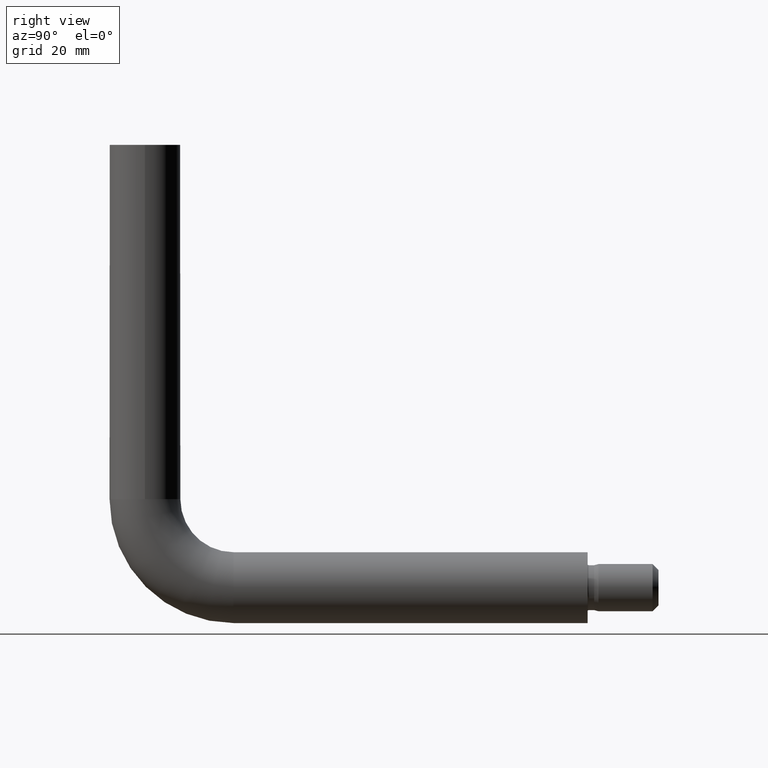
[diagram: clean part render]
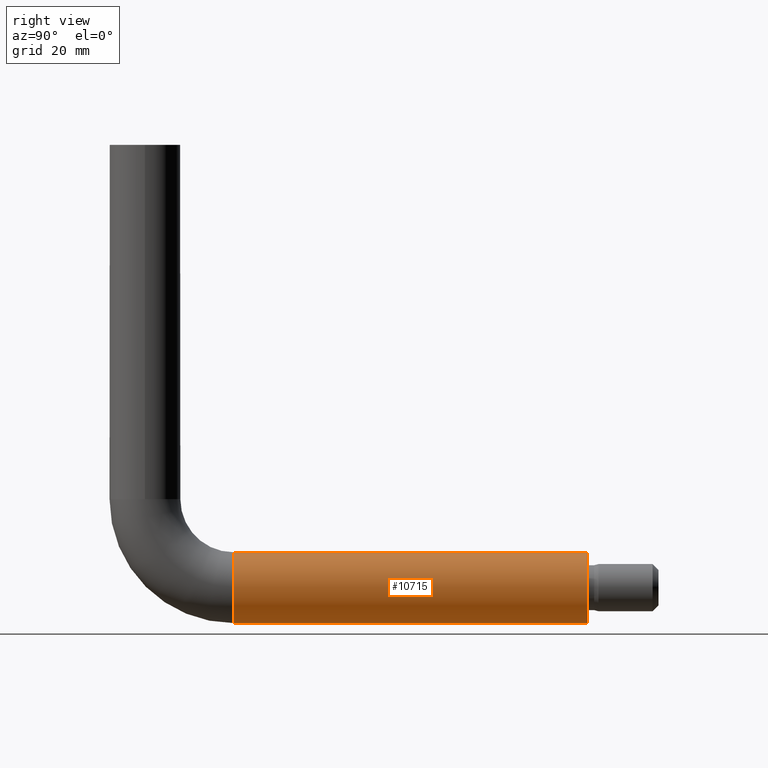
[diagram: same view with one face highlighted and labeled with its STEP entity id]
A machine part, right view. The second image highlights one B-rep face of the part: STEP entity #10715.
In plain terms, the highlighted cylindrical surface (edge-blend (fillet) strip) has radius 6 mm, axis along (0, 1, 0).
Its self-contained STEP definition (entity closure, byte-faithful):
#75 = CARTESIAN_POINT ( 'NONE',  ( 0.0000000000000000000, 15.00000000000010300, -75.00000000000001400 ) ) ;
#802 = EDGE_LOOP ( 'NONE', ( #10711, #4152, #7929, #4275 ) ) ;
#1308 = DIRECTION ( 'NONE',  ( 0.0000000000000000000, 1.000000000000000000, 0.0000000000000000000 ) ) ;
#2400 = CARTESIAN_POINT ( 'NONE',  ( 7.347880794884114800E-016, 15.00000000000018700, -81.00000000000001400 ) ) ;
#2774 = CARTESIAN_POINT ( 'NONE',  ( 0.0000000000000000000, 15.00000000000002000, -69.00000000000000000 ) ) ;
#3270 = VECTOR ( 'NONE', #5880, 1000.000000000000000 ) ;
#3633 = CARTESIAN_POINT ( 'NONE',  ( 7.347880794884120700E-016, 15.00000000000010300, -81.00000000000001400 ) ) ;
#4152 = ORIENTED_EDGE ( 'NONE', *, *, #8496, .T. ) ;
#4167 = CARTESIAN_POINT ( 'NONE',  ( 0.0000000000000000000, 15.00000000000010300, -69.00000000000000000 ) ) ;
#4275 = ORIENTED_EDGE ( 'NONE', *, *, #7911, .F. ) ;
#4827 = CIRCLE ( 'NONE', #5586, 6.000000000000000900 ) ;
#4958 = LINE ( 'NONE', #4167, #7377 ) ;
#5174 = VERTEX_POINT ( 'NONE', #10088 ) ;
#5586 = AXIS2_PLACEMENT_3D ( 'NONE', #8152, #12763, #6070 ) ;
#5699 = EDGE_CURVE ( 'NONE', #10880, #5174, #7901, .T. ) ;
#5880 = DIRECTION ( 'NONE',  ( 0.0000000000000000000, 1.000000000000000000, 0.0000000000000000000 ) ) ;
#6032 = DIRECTION ( 'NONE',  ( -0.0000000000000000000, 1.000000000000000000, -0.0000000000000000000 ) ) ;
#6070 = DIRECTION ( 'NONE',  ( 1.000000000000000000, 0.0000000000000000000, 0.0000000000000000000 ) ) ;
#6240 = LINE ( 'NONE', #3633, #3270 ) ;
#6782 = AXIS2_PLACEMENT_3D ( 'NONE', #9472, #6032, #8400 ) ;
#7377 = VECTOR ( 'NONE', #14104, 1000.000000000000000 ) ;
#7852 = DIRECTION ( 'NONE',  ( 0.0000000000000000000, 0.0000000000000000000, 1.000000000000000000 ) ) ;
#7901 = CIRCLE ( 'NONE', #6782, 6.000000000000005300 ) ;
#7911 = EDGE_CURVE ( 'NONE', #10794, #10880, #4958, .T. ) ;
#7929 = ORIENTED_EDGE ( 'NONE', *, *, #5699, .F. ) ;
#8152 = CARTESIAN_POINT ( 'NONE',  ( 0.0000000000000000000, 15.00000000000010300, -75.00000000000001400 ) ) ;
#8400 = DIRECTION ( 'NONE',  ( 0.0000000000000000000, 0.0000000000000000000, 1.000000000000000000 ) ) ;
#8496 = EDGE_CURVE ( 'NONE', #13984, #5174, #6240, .T. ) ;
#8630 = CYLINDRICAL_SURFACE ( 'NONE', #12227, 6.000000000000005300 ) ;
#9213 = EDGE_CURVE ( 'NONE', #13984, #10794, #4827, .T. ) ;
#9472 = CARTESIAN_POINT ( 'NONE',  ( 0.0000000000000000000, 74.99999999999991500, -75.00000000000001400 ) ) ;
#9666 = FACE_OUTER_BOUND ( 'NONE', #802, .T. ) ;
#10088 = CARTESIAN_POINT ( 'NONE',  ( 7.347880794884125700E-016, 74.99999999999991500, -81.00000000000001400 ) ) ;
#10691 = CARTESIAN_POINT ( 'NONE',  ( 0.0000000000000000000, 74.99999999999991500, -69.00000000000000000 ) ) ;
#10711 = ORIENTED_EDGE ( 'NONE', *, *, #9213, .F. ) ;
#10715 = ADVANCED_FACE ( 'NONE', ( #9666 ), #8630, .T. ) ;
#10794 = VERTEX_POINT ( 'NONE', #2774 ) ;
#10880 = VERTEX_POINT ( 'NONE', #10691 ) ;
#12227 = AXIS2_PLACEMENT_3D ( 'NONE', #75, #1308, #7852 ) ;
#12763 = DIRECTION ( 'NONE',  ( 0.0000000000000000000, -1.000000000000000000, -1.392757777031960500E-014 ) ) ;
#13984 = VERTEX_POINT ( 'NONE', #2400 ) ;
#14104 = DIRECTION ( 'NONE',  ( 0.0000000000000000000, 1.000000000000000000, 0.0000000000000000000 ) ) ;